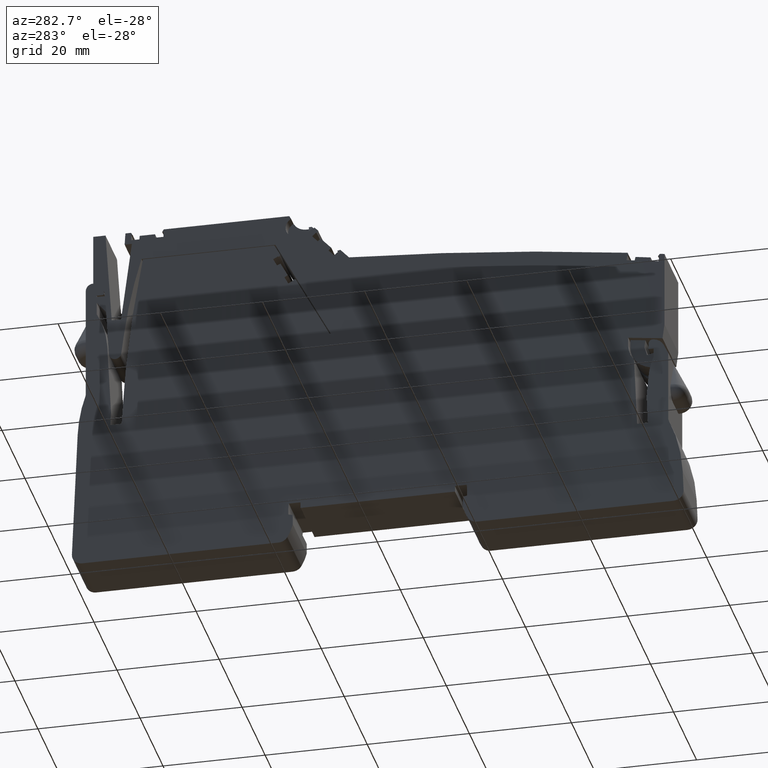
[diagram: clean part render]
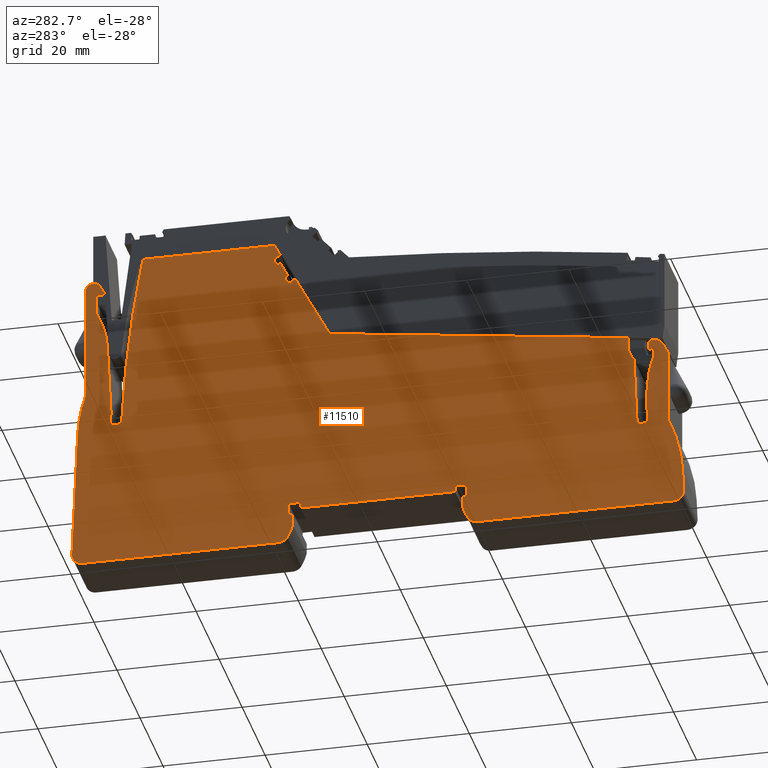
[diagram: same view with one face highlighted and labeled with its STEP entity id]
A machine part, auxiliary view. The second image highlights one B-rep face of the part: STEP entity #11510.
In plain terms, the highlighted planar face has unit normal (1, 0, 0).
Its self-contained STEP definition (entity closure, byte-faithful):
#5800=CARTESIAN_POINT('',(170.62862020886,7.88572430319507,24.3));
#5810=DIRECTION('',(1.25296523235185E-58,1.19110369467609E-44,1.));
#5820=DIRECTION('',(-1.05193631583234E-14,-1.,1.19110369467609E-44));
#5830=AXIS2_PLACEMENT_3D('',#5800,#5810,#5820);
#5840=PLANE('',#5830);
#5850=CARTESIAN_POINT('',(293.779977067029,1.32160948851379E-12,24.3));
#5860=DIRECTION('',(-0.0436193873653358,0.999048221581858,
-1.18997002788573E-44));
#5870=VECTOR('',#5860,1.);
#5880=LINE('',#5850,#5870);
#5890=CARTESIAN_POINT('',(296.437489395879,-60.8670393220619,24.3));
#5900=VERTEX_POINT('',#5890);
#5910=CARTESIAN_POINT('',(295.310352033684,-35.0513494374681,24.3));
#5920=VERTEX_POINT('',#5910);
#5930=EDGE_CURVE('',#5900,#5920,#5880,.T.);
#5940=ORIENTED_EDGE('',*,*,#5930,.F.);
#5950=CARTESIAN_POINT('',(265.338905386229,-36.3599310584282,24.3));
#5960=DIRECTION('',(0.,1.19110369467609E-44,1.));
#5970=DIRECTION('',(1.,0.,0.));
#5980=AXIS2_PLACEMENT_3D('',#5950,#5960,#5970);
#5990=CIRCLE('',#5980,29.9999999999995);
#6000=CARTESIAN_POINT('',(293.728620208859,-26.6633289582232,24.3));
#6010=VERTEX_POINT('',#6000);
#6020=EDGE_CURVE('',#5920,#6010,#5990,.T.);
#6030=ORIENTED_EDGE('',*,*,#6020,.F.);
#6040=CARTESIAN_POINT('',(293.728620208859,1.32160948851379E-12,24.3));
#6050=DIRECTION('',(0.,1.,-1.19110369467609E-44));
#6060=VECTOR('',#6050,1.);
#6070=LINE('',#6040,#6060);
#6080=CARTESIAN_POINT('',(293.728620208859,-4.14411839789921,24.3));
#6090=VERTEX_POINT('',#6080);
#6100=EDGE_CURVE('',#6010,#6090,#6070,.T.);
#6110=ORIENTED_EDGE('',*,*,#6100,.F.);
#6120=CARTESIAN_POINT('',(292.238779907752,-4.14411839789921,24.3));
#6130=DIRECTION('',(0.,1.19110369467609E-44,1.));
#6140=DIRECTION('',(1.,0.,0.));
#6150=AXIS2_PLACEMENT_3D('',#6120,#6130,#6140);
#6160=CIRCLE('',#6150,1.48984030110678);
#6170=CARTESIAN_POINT('',(290.948540359412,-3.39919824734572,24.3));
#6180=VERTEX_POINT('',#6170);
#6190=EDGE_CURVE('',#6090,#6180,#6160,.T.);
#6200=ORIENTED_EDGE('',*,*,#6190,.F.);
#6210=CARTESIAN_POINT('',(256.88218159745,-62.4038624519241,24.3));
#6220=DIRECTION('',(0.500000000000064,0.866025403784402,
-1.03152605813096E-44));
#6230=VECTOR('',#6220,1.);
#6240=LINE('',#6210,#6230);
#6250=CARTESIAN_POINT('',(290.166184643561,-4.75427809679243,24.3));
#6260=VERTEX_POINT('',#6250);
#6270=EDGE_CURVE('',#6260,#6180,#6240,.T.);
#6280=ORIENTED_EDGE('',*,*,#6270,.T.);
#6290=CARTESIAN_POINT('',(290.512594805074,-4.95427809679246,24.3));
#6300=DIRECTION('',(0.,1.19110369467609E-44,1.));
#6310=DIRECTION('',(1.,0.,0.));
#6320=AXIS2_PLACEMENT_3D('',#6290,#6300,#6310);
#6330=CIRCLE('',#6320,0.4);
#6340=CARTESIAN_POINT('',(290.512594805074,-5.35427809679246,24.3));
#6350=VERTEX_POINT('',#6340);
#6360=EDGE_CURVE('',#6260,#6350,#6330,.T.);
#6370=ORIENTED_EDGE('',*,*,#6360,.F.);
#6380=CARTESIAN_POINT('',(217.456642799385,-5.35427809679246,24.3));
#6390=DIRECTION('',(-1.,0.,0.));
#6400=VECTOR('',#6390,1.);
#6410=LINE('',#6380,#6400);
#6420=CARTESIAN_POINT('',(291.578620208859,-5.35427809679246,24.3));
#6430=VERTEX_POINT('',#6420);
#6440=EDGE_CURVE('',#6430,#6350,#6410,.T.);
#6450=ORIENTED_EDGE('',*,*,#6440,.T.);
#6460=CARTESIAN_POINT('',(291.578620208859,-62.4038624519237,24.3));
#6470=DIRECTION('',(0.,1.,-1.19110369467609E-44));
#6480=VECTOR('',#6470,1.);
#6490=LINE('',#6460,#6480);
#6500=CARTESIAN_POINT('',(291.578620208859,-9.34013045847766,24.3));
#6510=VERTEX_POINT('',#6500);
#6520=EDGE_CURVE('',#6510,#6430,#6490,.T.);
#6530=ORIENTED_EDGE('',*,*,#6520,.T.);
#6540=CARTESIAN_POINT('',(306.174873430273,-17.4542780967923,24.3));
#6550=DIRECTION('',(0.,1.19110369467609E-44,1.));
#6560=DIRECTION('',(1.,0.,0.));
#6570=AXIS2_PLACEMENT_3D('',#6540,#6550,#6560);
#6580=CIRCLE('',#6570,16.6999999999999);
#6590=CARTESIAN_POINT('',(289.495566915125,-16.6231739072967,24.3));
#6600=VERTEX_POINT('',#6590);
#6610=EDGE_CURVE('',#6510,#6600,#6580,.T.);
#6620=ORIENTED_EDGE('',*,*,#6610,.F.);
#6630=CARTESIAN_POINT('',(287.214385619435,-62.4038624519238,24.3));
#6640=DIRECTION('',(0.0497667179338586,0.99876086917044,
-1.18962776136682E-44));
#6650=VECTOR('',#6640,1.);
#6660=LINE('',#6630,#6650);
#6670=CARTESIAN_POINT('',(288.781470035787,-30.9542780967933,24.3));
#6680=VERTEX_POINT('',#6670);
#6690=EDGE_CURVE('',#6680,#6600,#6660,.T.);
#6700=ORIENTED_EDGE('',*,*,#6690,.T.);
#6710=CARTESIAN_POINT('',(290.154588542814,-62.4038624519238,24.3));
#6720=DIRECTION('',(-0.0436193873653793,0.999048221581856,
-1.18997002788573E-44));
#6730=VECTOR('',#6720,1.);
#6740=LINE('',#6710,#6730);
#6750=CARTESIAN_POINT('',(288.89935458164,-33.6542780967924,24.3));
#6760=VERTEX_POINT('',#6750);
#6770=EDGE_CURVE('',#6760,#6680,#6740,.T.);
#6780=ORIENTED_EDGE('',*,*,#6770,.T.);
#6790=CARTESIAN_POINT('',(217.456642799386,-33.6542780967924,24.3));
#6800=DIRECTION('',(1.,0.,0.));
#6810=VECTOR('',#6800,1.);
#6820=LINE('',#6790,#6810);
#6830=CARTESIAN_POINT('',(286.717034567893,-33.6542780967924,24.3));
#6840=VERTEX_POINT('',#6830);
#6850=EDGE_CURVE('',#6840,#6760,#6820,.T.);
#6860=ORIENTED_EDGE('',*,*,#6850,.T.);
#6870=CARTESIAN_POINT('',(42.7786202088592,-44.954278096795,24.3));
#6880=DIRECTION('',(0.,1.19110369467609E-44,1.));
#6890=DIRECTION('',(1.,1.05193631583234E-14,-1.25296523235185E-58));
#6900=AXIS2_PLACEMENT_3D('',#6870,#6880,#6890);
#6910=CIRCLE('',#6900,244.2);
#6920=CARTESIAN_POINT('',(282.529908005194,1.44572190319566,24.3));
#6930=VERTEX_POINT('',#6920);
#6940=EDGE_CURVE('',#6840,#6930,#6910,.T.);
#6950=ORIENTED_EDGE('',*,*,#6940,.F.);
#6960=CARTESIAN_POINT('',(217.456642799385,1.44572190319565,24.3));
#6970=DIRECTION('',(1.,0.,0.));
#6980=VECTOR('',#6970,1.);
#6990=LINE('',#6960,#6980);
#7000=CARTESIAN_POINT('',(256.778620208859,1.44572190319565,24.3));
#7010=VERTEX_POINT('',#7000);
#7020=EDGE_CURVE('',#7010,#6930,#6990,.T.);
#7030=ORIENTED_EDGE('',*,*,#7020,.T.);
#7040=CARTESIAN_POINT('',(222.829193999575,-62.4038624519245,24.3));
#7050=DIRECTION('',(0.469471562785901,0.882947592858922,
-1.05168214005963E-44));
#7060=VECTOR('',#7050,1.);
#7070=LINE('',#7040,#7060);
#7080=CARTESIAN_POINT('',(255.620592435979,-0.732211576865346,24.3));
#7090=VERTEX_POINT('',#7080);
#7100=EDGE_CURVE('',#7090,#7010,#7070,.T.);
#7110=ORIENTED_EDGE('',*,*,#7100,.T.);
#7120=CARTESIAN_POINT('',(294.157316949414,-62.4038624519237,24.3));
#7130=DIRECTION('',(-0.529919264232796,0.848048096156682,
-1.01011322059525E-44));
#7140=VECTOR('',#7130,1.);
#7150=LINE('',#7120,#7140);
#7160=CARTESIAN_POINT('',(255.80722134419,-1.03088026279238,24.3));
#7170=VERTEX_POINT('',#7160);
#7180=EDGE_CURVE('',#7170,#7090,#7150,.T.);
#7190=ORIENTED_EDGE('',*,*,#7180,.T.);
#7200=CARTESIAN_POINT('',(255.934428558613,-0.951392373157361,24.3));
#7210=DIRECTION('',(0.,1.19110369467609E-44,1.));
#7220=DIRECTION('',(1.,1.05193631583234E-14,-1.25296523235185E-58));
#7230=AXIS2_PLACEMENT_3D('',#7200,#7210,#7220);
#7240=CIRCLE('',#7230,0.150000000000037);
#7250=CARTESIAN_POINT('',(256.066870697542,-1.02181310757526,24.3));
#7260=VERTEX_POINT('',#7250);
#7270=EDGE_CURVE('',#7170,#7260,#7240,.T.);
#7280=ORIENTED_EDGE('',*,*,#7270,.F.);
#7290=CARTESIAN_POINT('',(223.429456126156,-62.4038624519245,24.3));
#7300=DIRECTION('',(-0.469471562789092,-0.882947592857225,
1.0516821400576E-44));
#7310=VECTOR('',#7300,1.);
#7320=LINE('',#7290,#7310);
#7330=CARTESIAN_POINT('',(256.072739092077,-1.01077626266459,24.3));
#7340=VERTEX_POINT('',#7330);
#7350=EDGE_CURVE('',#7340,#7260,#7320,.T.);
#7360=ORIENTED_EDGE('',*,*,#7350,.T.);
#7370=CARTESIAN_POINT('',(217.456642799385,19.5217663500998,24.3));
#7380=DIRECTION('',(-0.882947592859,0.469471562785753,
-5.59189312979471E-45));
#7390=VECTOR('',#7380,1.);
#7400=LINE('',#7370,#7390);
#7410=CARTESIAN_POINT('',(257.017493016436,-1.51311083484534,24.3));
#7420=VERTEX_POINT('',#7410);
#7430=EDGE_CURVE('',#7420,#7340,#7400,.T.);
#7440=ORIENTED_EDGE('',*,*,#7430,.T.);
#7450=CARTESIAN_POINT('',(224.641306080672,-62.4038624519244,24.3));
#7460=DIRECTION('',(0.469471562785964,0.882947592858888,
-1.05168214005959E-44));
#7470=VECTOR('',#7460,1.);
#7480=LINE('',#7450,#7470);
#7490=CARTESIAN_POINT('',(256.267801622998,-2.92307527932637,24.3));
#7500=VERTEX_POINT('',#7490);
#7510=EDGE_CURVE('',#7500,#7420,#7480,.T.);
#7520=ORIENTED_EDGE('',*,*,#7510,.T.);
#7530=CARTESIAN_POINT('',(217.456642799385,13.551284229208,24.3));
#7540=DIRECTION('',(0.920504853452444,-0.390731128489265,
4.65401290768523E-45));
#7550=VECTOR('',#7540,1.);
#7560=LINE('',#7530,#7550);
#7570=CARTESIAN_POINT('',(255.57478584866,-2.62890753588395,24.3));
#7580=VERTEX_POINT('',#7570);
#7590=EDGE_CURVE('',#7580,#7500,#7560,.T.);
#7600=ORIENTED_EDGE('',*,*,#7590,.T.);
#7610=CARTESIAN_POINT('',(223.791878542665,-62.4038624519245,24.3));
#7620=DIRECTION('',(0.469471562785848,0.88294759285895,
-1.05168214005966E-44));
#7630=VECTOR('',#7620,1.);
#7640=LINE('',#7610,#7630);
#7650=CARTESIAN_POINT('',(254.166371160303,-5.27775031446076,24.3));
#7660=VERTEX_POINT('',#7650);
#7670=EDGE_CURVE('',#7660,#7580,#7640,.T.);
#7680=ORIENTED_EDGE('',*,*,#7670,.T.);
#7690=CARTESIAN_POINT('',(217.456642799385,18.5618260273502,24.3));
#7700=DIRECTION('',(-0.838670567945287,0.544639035015238,
-6.48721566871473E-45));
#7710=VECTOR('',#7700,1.);
#7720=LINE('',#7690,#7710);
#7730=CARTESIAN_POINT('',(254.797776775253,-5.68778991519738,24.3));
#7740=VERTEX_POINT('',#7730);
#7750=EDGE_CURVE('',#7740,#7660,#7720,.T.);
#7760=ORIENTED_EDGE('',*,*,#7750,.T.);
#7770=CARTESIAN_POINT('',(224.641306080665,-62.4038624519244,24.3));
#7780=DIRECTION('',(0.469471562786055,0.88294759285884,
-1.05168214005953E-44));
#7790=VECTOR('',#7780,1.);
#7800=LINE('',#7770,#7790);
#7810=CARTESIAN_POINT('',(254.048085381815,-7.09775435967801,24.3));
#7820=VERTEX_POINT('',#7810);
#7830=EDGE_CURVE('',#7820,#7740,#7800,.T.);
#7840=ORIENTED_EDGE('',*,*,#7830,.T.);
#7850=CARTESIAN_POINT('',(217.456642799385,12.3582607794984,24.3));
#7860=DIRECTION('',(0.882947592858936,-0.469471562785873,
5.59189312979613E-45));
#7870=VECTOR('',#7860,1.);
#7880=LINE('',#7850,#7870);
#7890=CARTESIAN_POINT('',(253.103331457456,-6.59541978749719,24.3));
#7900=VERTEX_POINT('',#7890);
#7910=EDGE_CURVE('',#7900,#7820,#7880,.T.);
#7920=ORIENTED_EDGE('',*,*,#7910,.T.);
#7930=CARTESIAN_POINT('',(223.429456126324,-62.4038624519245,24.3));
#7940=DIRECTION('',(-0.469471562787342,-0.882947592858155,
1.05168214005871E-44));
#7950=VECTOR('',#7940,1.);
#7960=LINE('',#7930,#7950);
#7970=CARTESIAN_POINT('',(253.109199851991,-6.58438294258651,24.3));
#7980=VERTEX_POINT('',#7970);
#7990=EDGE_CURVE('',#7980,#7900,#7960,.T.);
#8000=ORIENTED_EDGE('',*,*,#7990,.T.);
#8010=CARTESIAN_POINT('',(252.976757713062,-6.51396220816862,24.3));
#8020=DIRECTION('',(0.,1.19110369467609E-44,1.));
#8030=DIRECTION('',(1.,1.05193631583234E-14,-1.25296523235185E-58));
#8040=AXIS2_PLACEMENT_3D('',#8010,#8020,#8030);
#8050=CIRCLE('',#8040,0.149999999999978);
#8060=CARTESIAN_POINT('',(252.971522788557,-6.36405358411578,24.3));
#8070=VERTEX_POINT('',#8060);
#8080=EDGE_CURVE('',#7980,#8070,#8050,.T.);
#8090=ORIENTED_EDGE('',*,*,#8080,.F.);
#8100=CARTESIAN_POINT('',(217.456642799385,-7.60426052174302,24.3));
#8110=DIRECTION('',(0.999390827019097,0.0348994967024531,
-4.15689194646281E-46));
#8120=VECTOR('',#8110,1.);
#8130=LINE('',#8100,#8120);
#8140=CARTESIAN_POINT('',(252.619553665123,-6.3763446167434,24.3));
#8150=VERTEX_POINT('',#8140);
#8160=EDGE_CURVE('',#8150,#8070,#8130,.T.);
#8170=ORIENTED_EDGE('',*,*,#8160,.T.);
#8180=CARTESIAN_POINT('',(222.829193999581,-62.4038624519245,24.3));
#8190=DIRECTION('',(0.469471562785816,0.882947592858967,
-1.05168214005968E-44));
#8200=VECTOR('',#8190,1.);
#8210=LINE('',#8180,#8200);
#8220=CARTESIAN_POINT('',(245.956559916687,-18.9076132978659,24.3));
#8230=VERTEX_POINT('',#8220);
#8240=EDGE_CURVE('',#8230,#8150,#8210,.T.);
#8250=ORIENTED_EDGE('',*,*,#8240,.T.);
#8260=CARTESIAN_POINT('',(217.456642799386,-22.6596985673923,24.3));
#8270=DIRECTION('',(0.991444861373811,0.13052619222005,
-1.55470229805303E-45));
#8280=VECTOR('',#8270,1.);
#8290=LINE('',#8260,#8280);
#8300=CARTESIAN_POINT('',(187.478620208858,-26.6063801141666,24.3));
#8310=VERTEX_POINT('',#8300);
#8320=EDGE_CURVE('',#8310,#8230,#8290,.T.);
#8330=ORIENTED_EDGE('',*,*,#8320,.T.);
#8340=CARTESIAN_POINT('',(187.478620208858,-62.4038624519248,24.3));
#8350=DIRECTION('',(-1.05193631583234E-14,1.,-1.19110369467609E-44));
#8360=VECTOR('',#8350,1.);
#8370=LINE('',#8340,#8360);
#8380=CARTESIAN_POINT('',(187.478620208858,-28.2732715626828,24.3));
#8390=VERTEX_POINT('',#8380);
#8400=EDGE_CURVE('',#8390,#8310,#8370,.T.);
#8410=ORIENTED_EDGE('',*,*,#8400,.T.);
#8420=CARTESIAN_POINT('',(182.478620208859,-28.2732715626829,24.3));
#8430=DIRECTION('',(0.,1.19110369467609E-44,1.));
#8440=DIRECTION('',(1.,1.05193631583234E-14,-1.25296523235185E-58));
#8450=AXIS2_PLACEMENT_3D('',#8420,#8430,#8440);
#8460=CIRCLE('',#8450,4.99999999999888);
#8470=CARTESIAN_POINT('',(186.331435499458,-31.4600904054345,24.3));
#8480=VERTEX_POINT('',#8470);
#8490=EDGE_CURVE('',#8480,#8390,#8460,.T.);
#8500=ORIENTED_EDGE('',*,*,#8490,.T.);
#8510=CARTESIAN_POINT('',(184.980401234762,-62.4038624519249,24.3));
#8520=DIRECTION('',(0.043619387365336,0.999048221581858,
-1.18997002788573E-44));
#8530=VECTOR('',#8520,1.);
#8540=LINE('',#8510,#8530);
#8550=CARTESIAN_POINT('',(185.720436069614,-45.4542780967935,24.3));
#8560=VERTEX_POINT('',#8550);
#8570=EDGE_CURVE('',#8560,#8480,#8540,.T.);
#8580=ORIENTED_EDGE('',*,*,#8570,.T.);
#8590=CARTESIAN_POINT('',(217.456642799386,-45.4542780967935,24.3));
#8600=DIRECTION('',(1.,0.,0.));
#8610=VECTOR('',#8600,1.);
#8620=LINE('',#8590,#8610);
#8630=CARTESIAN_POINT('',(183.642686709758,-45.4542780967935,24.3));
#8640=VERTEX_POINT('',#8630);
#8650=EDGE_CURVE('',#8640,#8560,#8620,.T.);
#8660=ORIENTED_EDGE('',*,*,#8650,.T.);
#8670=CARTESIAN_POINT('',(182.902651874904,-62.4038624519249,24.3));
#8680=DIRECTION('',(-0.0436193873653772,-0.999048221581856,
1.18997002788573E-44));
#8690=VECTOR('',#8680,1.);
#8700=LINE('',#8670,#8690);
#8710=CARTESIAN_POINT('',(183.886833925695,-39.8623875036679,24.3));
#8720=VERTEX_POINT('',#8710);
#8730=EDGE_CURVE('',#8720,#8640,#8700,.T.);
#8740=ORIENTED_EDGE('',*,*,#8730,.T.);
#8750=CARTESIAN_POINT('',(185.85895744282,-62.4038624519249,24.3));
#8760=DIRECTION('',(0.0871557427476241,-0.996194698091749,
1.18657118551382E-44));
#8770=VECTOR('',#8760,1.);
#8780=LINE('',#8750,#8770);
#8790=CARTESIAN_POINT('',(183.522565224166,-35.6987771929369,24.3));
#8800=VERTEX_POINT('',#8790);
#8810=EDGE_CURVE('',#8800,#8720,#8780,.T.);
#8820=ORIENTED_EDGE('',*,*,#8810,.T.);
#8830=CARTESIAN_POINT('',(166.886113765894,-37.1542780968345,24.3));
#8840=DIRECTION('',(0.,1.19110369467609E-44,1.));
#8850=DIRECTION('',(1.,0.,0.));
#8860=AXIS2_PLACEMENT_3D('',#8830,#8840,#8850);
#8870=CIRCLE('',#8860,16.7000000001442);
#8880=CARTESIAN_POINT('',(182.478620208859,-31.173998602455,24.3));
#8890=VERTEX_POINT('',#8880);
#8900=EDGE_CURVE('',#8800,#8890,#8870,.T.);
#8910=ORIENTED_EDGE('',*,*,#8900,.F.);
#8920=CARTESIAN_POINT('',(182.478620208859,-62.4038624519249,24.3));
#8930=DIRECTION('',(0.,-1.,1.19110369467609E-44));
#8940=VECTOR('',#8930,1.);
#8950=LINE('',#8920,#8940);
#8960=CARTESIAN_POINT('',(182.478620208859,-29.5542780967957,24.3));
#8970=VERTEX_POINT('',#8960);
#8980=EDGE_CURVE('',#8970,#8890,#8950,.T.);
#8990=ORIENTED_EDGE('',*,*,#8980,.T.);
#9000=CARTESIAN_POINT('',(217.456642799386,-29.5542780967957,24.3));
#9010=DIRECTION('',(-1.,0.,0.));
#9020=VECTOR('',#9010,1.);
#9030=LINE('',#9000,#9020);
#9040=CARTESIAN_POINT('',(183.478620208859,-29.5542780967957,24.3));
#9050=VERTEX_POINT('',#9040);
#9060=EDGE_CURVE('',#9050,#8970,#9030,.T.);
#9070=ORIENTED_EDGE('',*,*,#9060,.T.);
#9080=CARTESIAN_POINT('',(183.478620208859,-62.4038624519249,24.3));
#9090=DIRECTION('',(0.,-1.,1.19110369467609E-44));
#9100=VECTOR('',#9090,1.);
#9110=LINE('',#9080,#9100);
#9120=CARTESIAN_POINT('',(183.478620208859,-28.3478039592241,24.3));
#9130=VERTEX_POINT('',#9120);
#9140=EDGE_CURVE('',#9130,#9050,#9110,.T.);
#9150=ORIENTED_EDGE('',*,*,#9140,.T.);
#9160=CARTESIAN_POINT('',(182.678620208859,-28.3478039592241,24.3));
#9170=DIRECTION('',(0.,1.19110369467609E-44,1.));
#9180=DIRECTION('',(1.,0.,0.));
#9190=AXIS2_PLACEMENT_3D('',#9160,#9170,#9180);
#9200=CIRCLE('',#9190,0.8);
#9210=CARTESIAN_POINT('',(182.574199255083,-27.554648070125,24.3));
#9220=VERTEX_POINT('',#9210);
#9230=EDGE_CURVE('',#9130,#9220,#9200,.T.);
#9240=ORIENTED_EDGE('',*,*,#9230,.F.);
#9250=CARTESIAN_POINT('',(217.456642799386,-22.9622872555666,24.3));
#9260=DIRECTION('',(0.991444861373812,0.130526192220044,
-1.55470229805296E-45));
#9270=VECTOR('',#9260,1.);
#9280=LINE('',#9250,#9270);
#9290=CARTESIAN_POINT('',(182.452304728309,-27.5706957890171,24.3));
#9300=VERTEX_POINT('',#9290);
#9310=EDGE_CURVE('',#9300,#9220,#9280,.T.);
#9320=ORIENTED_EDGE('',*,*,#9310,.T.);
#9330=CARTESIAN_POINT('',(182.778620208859,-30.0493079424516,24.3));
#9340=DIRECTION('',(0.,1.19110369467609E-44,1.));
#9350=DIRECTION('',(1.,0.,0.));
#9360=AXIS2_PLACEMENT_3D('',#9330,#9340,#9350);
#9370=CIRCLE('',#9360,2.5);
#9380=CARTESIAN_POINT('',(180.530802423074,-28.9550889506996,24.3));
#9390=VERTEX_POINT('',#9380);
#9400=EDGE_CURVE('',#9300,#9390,#9370,.T.);
#9410=ORIENTED_EDGE('',*,*,#9400,.F.);
#9420=CARTESIAN_POINT('',(164.248217843791,-62.4038624519251,24.3));
#9430=DIRECTION('',(-0.437687596700824,-0.899127114313798,
1.07095362784262E-44));
#9440=VECTOR('',#9430,1.);
#9450=LINE('',#9420,#9440);
#9460=CARTESIAN_POINT('',(179.617847465003,-30.8305420435833,24.3));
#9470=VERTEX_POINT('',#9460);
#9480=EDGE_CURVE('',#9390,#9470,#9450,.T.);
#9490=ORIENTED_EDGE('',*,*,#9480,.F.);
#9500=CARTESIAN_POINT('',(179.617847465003,-62.4038624519249,24.3));
#9510=DIRECTION('',(0.,1.,-1.19110369467609E-44));
#9520=VECTOR('',#9510,1.);
#9530=LINE('',#9500,#9520);
#9540=CARTESIAN_POINT('',(179.617847465003,-45.2366806104566,24.3));
#9550=VERTEX_POINT('',#9540);
#9560=EDGE_CURVE('',#9550,#9470,#9530,.T.);
#9570=ORIENTED_EDGE('',*,*,#9560,.T.);
#9580=CARTESIAN_POINT('',(206.774136155416,-57.9856407469757,24.3));
#9590=DIRECTION('',(0.,1.19110369467609E-44,1.));
#9600=DIRECTION('',(1.,0.,0.));
#9610=AXIS2_PLACEMENT_3D('',#9580,#9590,#9600);
#9620=CIRCLE('',#9610,29.9999999999933);
#9630=CARTESIAN_POINT('',(176.802689507967,-56.6770591260145,24.3));
#9640=VERTEX_POINT('',#9630);
#9650=EDGE_CURVE('',#9550,#9640,#9620,.T.);
#9660=ORIENTED_EDGE('',*,*,#9650,.F.);
#9670=CARTESIAN_POINT('',(176.552651874906,-62.403862451925,24.3));
#9680=DIRECTION('',(0.0436193873653827,0.999048221581856,
-1.18997002788573E-44));
#9690=VECTOR('',#9680,1.);
#9700=LINE('',#9670,#9690);
#9710=CARTESIAN_POINT('',(176.619751021839,-60.8670393220622,24.3));
#9720=VERTEX_POINT('',#9710);
#9730=EDGE_CURVE('',#9720,#9640,#9700,.T.);
#9740=ORIENTED_EDGE('',*,*,#9730,.T.);
#9750=CARTESIAN_POINT('',(178.617847465003,-60.9542780967929,24.3));
#9760=DIRECTION('',(0.,-1.19110369467609E-44,-1.));
#9770=DIRECTION('',(-1.,-1.05193631583234E-14,1.25296523235185E-58));
#9780=AXIS2_PLACEMENT_3D('',#9750,#9760,#9770);
#9790=CIRCLE('',#9780,2.);
#9800=CARTESIAN_POINT('',(178.617847465003,-62.9542780967929,24.3));
#9810=VERTEX_POINT('',#9800);
#9820=EDGE_CURVE('',#9810,#9720,#9790,.T.);
#9830=ORIENTED_EDGE('',*,*,#9820,.T.);
#9840=CARTESIAN_POINT('',(217.456642799386,-62.9542780967929,24.3));
#9850=DIRECTION('',(-1.,0.,0.));
#9860=VECTOR('',#9850,1.);
#9870=LINE('',#9840,#9860);
#9880=CARTESIAN_POINT('',(217.09468547299,-62.9542780967929,24.3));
#9890=VERTEX_POINT('',#9880);
#9900=EDGE_CURVE('',#9890,#9810,#9870,.T.);
#9910=ORIENTED_EDGE('',*,*,#9900,.T.);
#9920=CARTESIAN_POINT('',(217.09468547299,-60.9542780967925,24.3));
#9930=DIRECTION('',(0.,-1.19110369467609E-44,-1.));
#9940=DIRECTION('',(-1.,0.,0.));
#9950=AXIS2_PLACEMENT_3D('',#9920,#9930,#9940);
#9960=CIRCLE('',#9950,2.);
#9970=CARTESIAN_POINT('',(218.818969543425,-61.9676114301258,24.3));
#9980=VERTEX_POINT('',#9970);
#9990=EDGE_CURVE('',#9980,#9890,#9960,.T.);
#10000=ORIENTED_EDGE('',*,*,#9990,.T.);
#10010=CARTESIAN_POINT('',(210.628620208859,-57.1542780967929,24.3));
#10020=DIRECTION('',(0.,-1.19110369467609E-44,-1.));
#10030=DIRECTION('',(-1.,0.,0.));
#10040=AXIS2_PLACEMENT_3D('',#10010,#10020,#10030);
#10050=CIRCLE('',#10040,9.5);
#10060=CARTESIAN_POINT('',(219.878620208859,-59.3193416062538,24.3));
#10070=VERTEX_POINT('',#10060);
#10080=EDGE_CURVE('',#10070,#9980,#10050,.T.);
#10090=ORIENTED_EDGE('',*,*,#10080,.T.);
#10100=CARTESIAN_POINT('',(219.878620208859,-62.4038624519245,24.3));
#10110=DIRECTION('',(0.,-1.,1.19110369467609E-44));
#10120=VECTOR('',#10110,1.);
#10130=LINE('',#10100,#10120);
#10140=CARTESIAN_POINT('',(219.878620208859,-57.2709062822758,24.3));
#10150=VERTEX_POINT('',#10140);
#10160=EDGE_CURVE('',#10150,#10070,#10130,.T.);
#10170=ORIENTED_EDGE('',*,*,#10160,.T.);
#10180=CARTESIAN_POINT('',(217.456642799386,-56.8001215646977,24.3));
#10190=DIRECTION('',(0.98162718344766,-0.190808995376566,
2.27273299370461E-45));
#10200=VECTOR('',#10190,1.);
#10210=LINE('',#10180,#10200);
#10220=CARTESIAN_POINT('',(219.028620208859,-57.1056830195087,24.3));
#10230=VERTEX_POINT('',#10220);
#10240=EDGE_CURVE('',#10230,#10150,#10210,.T.);
#10250=ORIENTED_EDGE('',*,*,#10240,.T.);
#10260=CARTESIAN_POINT('',(219.028620208859,-62.4038624519245,24.3));
#10270=DIRECTION('',(0.,-1.,1.19110369467609E-44));
#10280=VECTOR('',#10270,1.);
#10290=LINE('',#10260,#10280);
#10300=CARTESIAN_POINT('',(219.028620208859,-55.9542780967931,24.3));
#10310=VERTEX_POINT('',#10300);
#10320=EDGE_CURVE('',#10310,#10230,#10290,.T.);
#10330=ORIENTED_EDGE('',*,*,#10320,.T.);
#10340=CARTESIAN_POINT('',(227.528620208859,-55.9542780967931,24.3));
#10350=DIRECTION('',(0.,1.19110369467609E-44,1.));
#10360=DIRECTION('',(1.,1.05193631583234E-14,-1.25296523235185E-58));
#10370=AXIS2_PLACEMENT_3D('',#10340,#10350,#10360);
#10380=CIRCLE('',#10370,8.49999999999999);
#10390=CARTESIAN_POINT('',(219.113752414295,-54.7542780967937,24.3));
#10400=VERTEX_POINT('',#10390);
#10410=EDGE_CURVE('',#10400,#10310,#10380,.T.);
#10420=ORIENTED_EDGE('',*,*,#10410,.T.);
#10430=CARTESIAN_POINT('',(198.544886176237,-54.7542780967937,24.3));
#10440=DIRECTION('',(1.,0.,-1.25296523235185E-58));
#10450=VECTOR('',#10440,1.);
#10460=LINE('',#10430,#10450);
#10470=CARTESIAN_POINT('',(221.403620208859,-54.7542780967937,24.3));
#10480=VERTEX_POINT('',#10470);
#10490=EDGE_CURVE('',#10400,#10480,#10460,.T.);
#10500=ORIENTED_EDGE('',*,*,#10490,.F.);
#10510=CARTESIAN_POINT('',(221.403620208859,-62.4038624519245,24.3));
#10520=DIRECTION('',(-1.05193631583234E-14,1.,-1.19110369467609E-44));
#10530=VECTOR('',#10520,1.);
#10540=LINE('',#10510,#10530);
#10550=CARTESIAN_POINT('',(221.403620208859,-55.9542780967931,24.3));
#10560=VERTEX_POINT('',#10550);
#10570=EDGE_CURVE('',#10560,#10480,#10540,.T.);
#10580=ORIENTED_EDGE('',*,*,#10570,.T.);
#10590=CARTESIAN_POINT('',(217.456642799386,-55.9542780967932,24.3));
#10600=DIRECTION('',(-1.,-1.05193631583234E-14,1.25296523235185E-58));
#10610=VECTOR('',#10600,1.);
#10620=LINE('',#10590,#10610);
#10630=CARTESIAN_POINT('',(251.653620208859,-55.9542780967928,24.3));
#10640=VERTEX_POINT('',#10630);
#10650=EDGE_CURVE('',#10640,#10560,#10620,.T.);
#10660=ORIENTED_EDGE('',*,*,#10650,.T.);
#10670=CARTESIAN_POINT('',(251.653620208859,-62.4038624519242,24.3));
#10680=DIRECTION('',(1.05193631583234E-14,-1.,1.19110369467609E-44));
#10690=VECTOR('',#10680,1.);
#10700=LINE('',#10670,#10690);
#10710=CARTESIAN_POINT('',(251.653620208859,-54.7542780967928,24.3));
#10720=VERTEX_POINT('',#10710);
#10730=EDGE_CURVE('',#10720,#10640,#10700,.T.);
#10740=ORIENTED_EDGE('',*,*,#10730,.T.);
#10750=CARTESIAN_POINT('',(217.456642799386,-54.7542780967928,24.3));
#10760=DIRECTION('',(1.,0.,-1.25296523235185E-58));
#10770=VECTOR('',#10760,1.);
#10780=LINE('',#10750,#10770);
#10790=CARTESIAN_POINT('',(253.943488003424,-54.7542780967928,24.3));
#10800=VERTEX_POINT('',#10790);
#10810=EDGE_CURVE('',#10720,#10800,#10780,.T.);
#10820=ORIENTED_EDGE('',*,*,#10810,.F.);
#10830=CARTESIAN_POINT('',(245.528620208859,-55.9542780967929,24.3));
#10840=DIRECTION('',(0.,1.19110369467609E-44,1.));
#10850=DIRECTION('',(1.,1.05193631583234E-14,-1.25296523235185E-58));
#10860=AXIS2_PLACEMENT_3D('',#10830,#10840,#10850);
#10870=CIRCLE('',#10860,8.50000000000005);
#10880=CARTESIAN_POINT('',(254.028620208859,-55.9542780967929,24.3));
#10890=VERTEX_POINT('',#10880);
#10900=EDGE_CURVE('',#10890,#10800,#10870,.T.);
#10910=ORIENTED_EDGE('',*,*,#10900,.T.);
#10920=CARTESIAN_POINT('',(254.028620208859,-62.4038624519241,24.3));
#10930=DIRECTION('',(0.,1.,-1.19110369467609E-44));
#10940=VECTOR('',#10930,1.);
#10950=LINE('',#10920,#10940);
#10960=CARTESIAN_POINT('',(254.028620208859,-57.1056830195084,24.3));
#10970=VERTEX_POINT('',#10960);
#10980=EDGE_CURVE('',#10970,#10890,#10950,.T.);
#10990=ORIENTED_EDGE('',*,*,#10980,.T.);
#11000=CARTESIAN_POINT('',(217.456642799386,-64.2145552941398,24.3));
#11010=DIRECTION('',(0.981627183447662,0.190808995376554,
-2.27273299370448E-45));
#11020=VECTOR('',#11010,1.);
#11030=LINE('',#11000,#11020);
#11040=CARTESIAN_POINT('',(253.178620208859,-57.2709062822754,24.3));
#11050=VERTEX_POINT('',#11040);
#11060=EDGE_CURVE('',#11050,#10970,#11030,.T.);
#11070=ORIENTED_EDGE('',*,*,#11060,.T.);
#11080=CARTESIAN_POINT('',(253.178620208859,-62.4038624519241,24.3));
#11090=DIRECTION('',(0.,1.,-1.19110369467609E-44));
#11100=VECTOR('',#11090,1.);
#11110=LINE('',#11080,#11100);
#11120=CARTESIAN_POINT('',(253.178620208859,-59.3193416062541,24.3));
#11130=VERTEX_POINT('',#11120);
#11140=EDGE_CURVE('',#11130,#11050,#11110,.T.);
#11150=ORIENTED_EDGE('',*,*,#11140,.T.);
#11160=CARTESIAN_POINT('',(262.428620208859,-57.1542780967929,24.3));
#11170=DIRECTION('',(0.,1.19110369467609E-44,1.));
#11180=DIRECTION('',(1.,0.,0.));
#11190=AXIS2_PLACEMENT_3D('',#11160,#11170,#11180);
#11200=CIRCLE('',#11190,9.5);
#11210=CARTESIAN_POINT('',(254.238270874293,-61.9676114301258,24.3));
#11220=VERTEX_POINT('',#11210);
#11230=EDGE_CURVE('',#11130,#11220,#11200,.T.);
#11240=ORIENTED_EDGE('',*,*,#11230,.F.);
#11250=CARTESIAN_POINT('',(255.962554944728,-60.9542780967925,24.3));
#11260=DIRECTION('',(0.,1.19110369467609E-44,1.));
#11270=DIRECTION('',(1.,0.,0.));
#11280=AXIS2_PLACEMENT_3D('',#11250,#11260,#11270);
#11290=CIRCLE('',#11280,2.);
#11300=CARTESIAN_POINT('',(255.962554944728,-62.9542780967925,24.3));
#11310=VERTEX_POINT('',#11300);
#11320=EDGE_CURVE('',#11220,#11310,#11290,.T.);
#11330=ORIENTED_EDGE('',*,*,#11320,.F.);
#11340=CARTESIAN_POINT('',(5.6843418860808E-14,-62.9542780967925,24.3));
#11350=DIRECTION('',(1.,0.,0.));
#11360=VECTOR('',#11350,1.);
#11370=LINE('',#11340,#11360);
#11380=CARTESIAN_POINT('',(294.439392952716,-62.9542780967925,24.3));
#11390=VERTEX_POINT('',#11380);
#11400=EDGE_CURVE('',#11310,#11390,#11370,.T.);
#11410=ORIENTED_EDGE('',*,*,#11400,.F.);
#11420=CARTESIAN_POINT('',(294.439392952716,-60.9542780967925,24.3));
#11430=DIRECTION('',(0.,-1.19110369467609E-44,-1.));
#11440=DIRECTION('',(-1.,0.,0.));
#11450=AXIS2_PLACEMENT_3D('',#11420,#11430,#11440);
#11460=CIRCLE('',#11450,2.);
#11470=EDGE_CURVE('',#5900,#11390,#11460,.T.);
#11480=ORIENTED_EDGE('',*,*,#11470,.T.);
#11490=EDGE_LOOP('',(#11480,#11410,#11330,#11240,#11150,#11070,#10990,
#10910,#10820,#10740,#10660,#10580,#10500,#10420,#10330,#10250,#10170,
#10090,#10000,#9910,#9830,#9740,#9660,#9570,#9490,#9410,#9320,#9240,
#9150,#9070,#8990,#8910,#8820,#8740,#8660,#8580,#8500,#8410,#8330,#8250,
#8170,#8090,#8000,#7920,#7840,#7760,#7680,#7600,#7520,#7440,#7360,#7280,
#7190,#7110,#7030,#6950,#6860,#6780,#6700,#6620,#6530,#6450,#6370,#6280,
#6200,#6110,#6030,#5940));
#11500=FACE_OUTER_BOUND('',#11490,.T.);
#11510=ADVANCED_FACE('',(#11500),#5840,.F.);